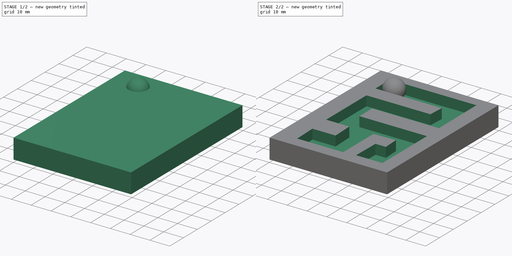
[diagram: build sequence overview — one tinted view per stage of 2, left to right]
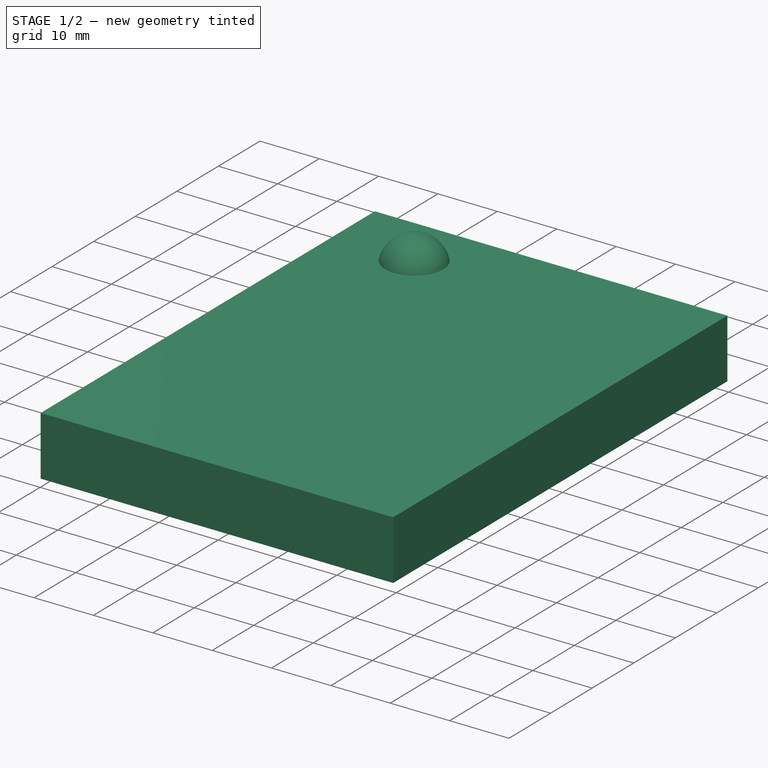
[diagram: stage 1 of 2 — iso view after this stage's code; geometry added in this stage tinted green]
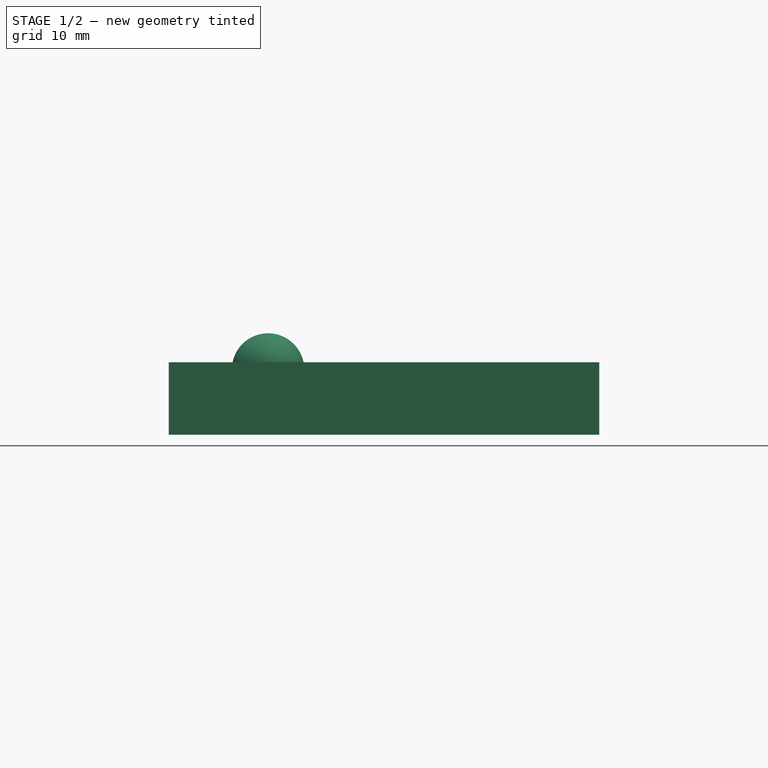
[diagram: stage 1 of 2 — front view after this stage's code; geometry added in this stage tinted green]
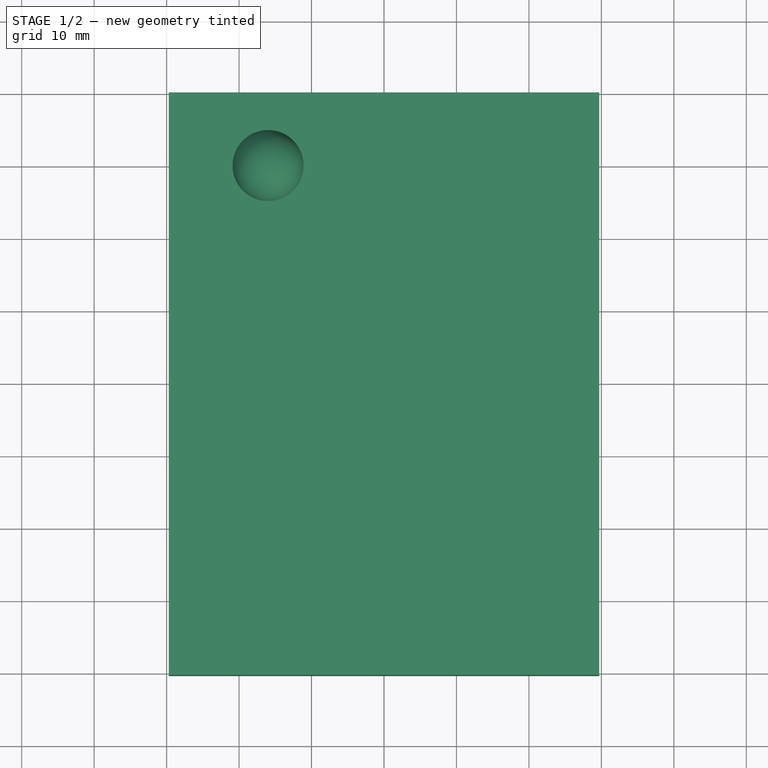
[diagram: stage 1 of 2 — top view after this stage's code; geometry added in this stage tinted green]
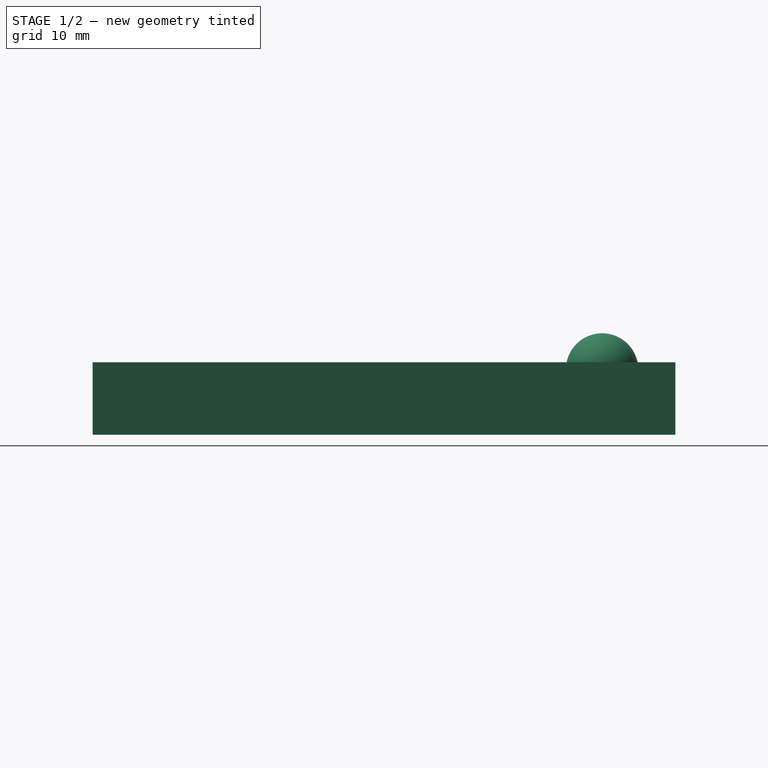
[diagram: stage 1 of 2 — right view after this stage's code; geometry added in this stage tinted green]
FCSTD DOCUMENT  (FreeCAD 0.21R33694 (Git))
Label: OJT1_T17R03_joc
License: All rights reserved
LicenseURL: http://en.wikipedia.org/wiki/All_rights_reserved
objects: Sketcher::SketchObject×3, PartDesign::Pocket×2, PartDesign::Pad×1, PartDesign::Body×1, Part::Sphere×1
note: 11 computed .brp shape members not serialized (recipe doc carries the construction recipe); baked Part::Feature solids carry a one-line shape summary decoded from their .brp

FEATURE [Sketcher::SketchObject] Sketch
  FullyConstrained = false
  MapMode = 5
  Support = -> [XY_Plane]
  sketch-geometry (4):
    g0: LineSegment StartX=-29.697 StartY=40.101 StartZ=0 EndX=-29.697 EndY=-40.303 EndZ=0
    g1: LineSegment StartX=-29.697 StartY=-40.303 StartZ=0 EndX=29.697 EndY=-40.303 EndZ=0
    g2: LineSegment StartX=29.697 StartY=-40.303 StartZ=0 EndX=29.697 EndY=40.101 EndZ=0
    g3: LineSegment StartX=29.697 StartY=40.101 StartZ=0 EndX=-29.697 EndY=40.101 EndZ=0
  constraints (8):
    c: Vertical(g0)
    c: Coincident(g0,g1)
    c: Horizontal(g1)
    c: Coincident(g1,g2)
    c: Vertical(g2)
    c: Coincident(g2,g3)
    c: Coincident(g3,g0)
    c: Horizontal(g3)
FEATURE [PartDesign::Pad] Pad
  Direction = (0,0,1)
  Length = 10
  Length2 = 10
  Profile = -> Sketch
  ReferenceAxis = -> Sketch [N_Axis]
  Type = 0
FEATURE [PartDesign::Body] Body
  Group = -> [Sketch,Pad,Sketch001,Pocket,Sketch002,Pocket001]
  Origin = -> Origin
  Tip = -> Pocket001
FEATURE [Part::Sphere] Sphere
  Angle1 = -90
  Angle2 = 90
  Angle3 = 360
  AttacherType = Attacher::AttachEngine3D
  Placement = pos=(-16,30,9) rot=(0,0,1;0rad)
  Radius = 5
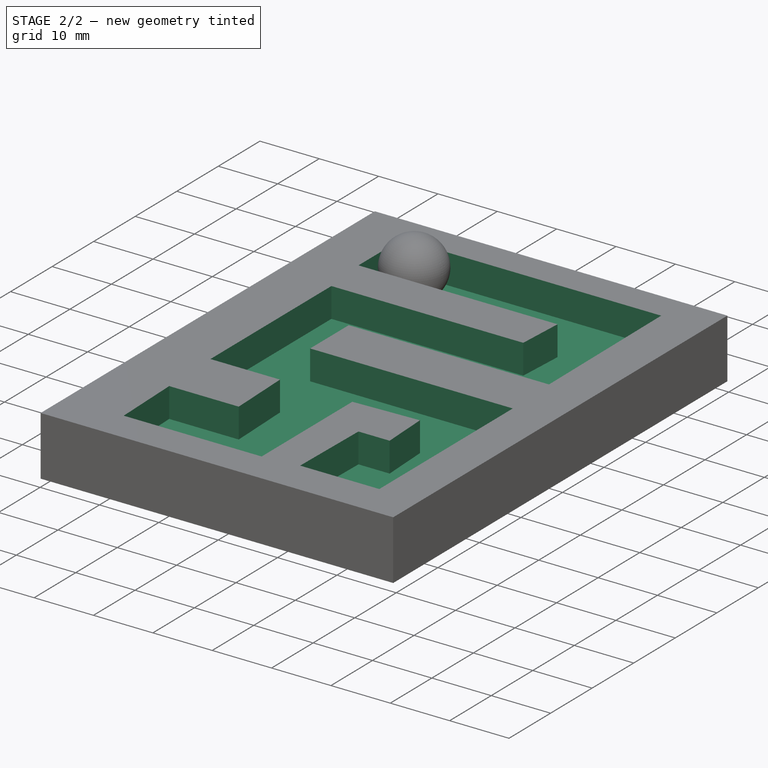
[diagram: stage 2 of 2 — iso view after this stage's code; geometry added in this stage tinted green]
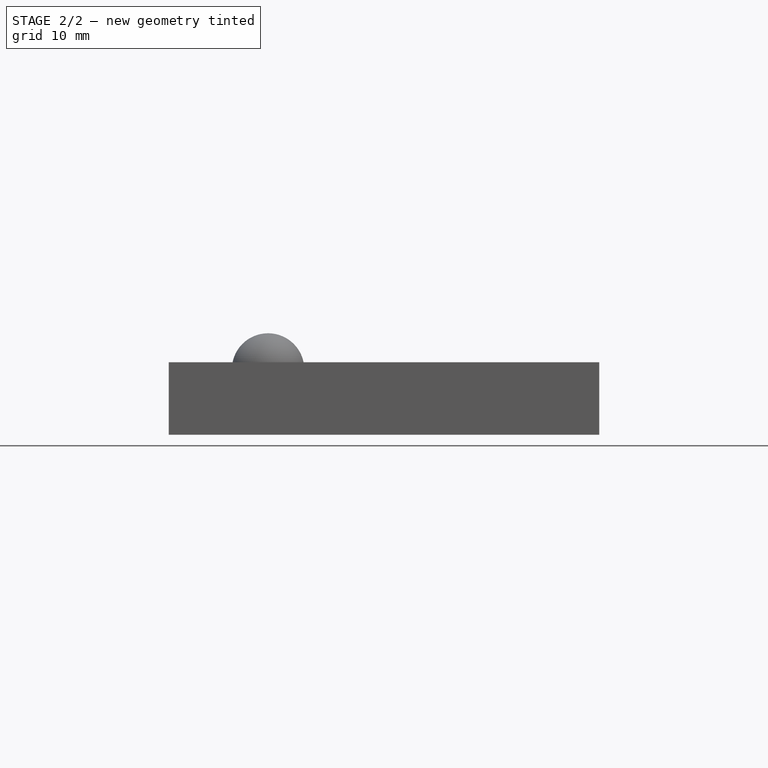
[diagram: stage 2 of 2 — front view after this stage's code; geometry added in this stage tinted green]
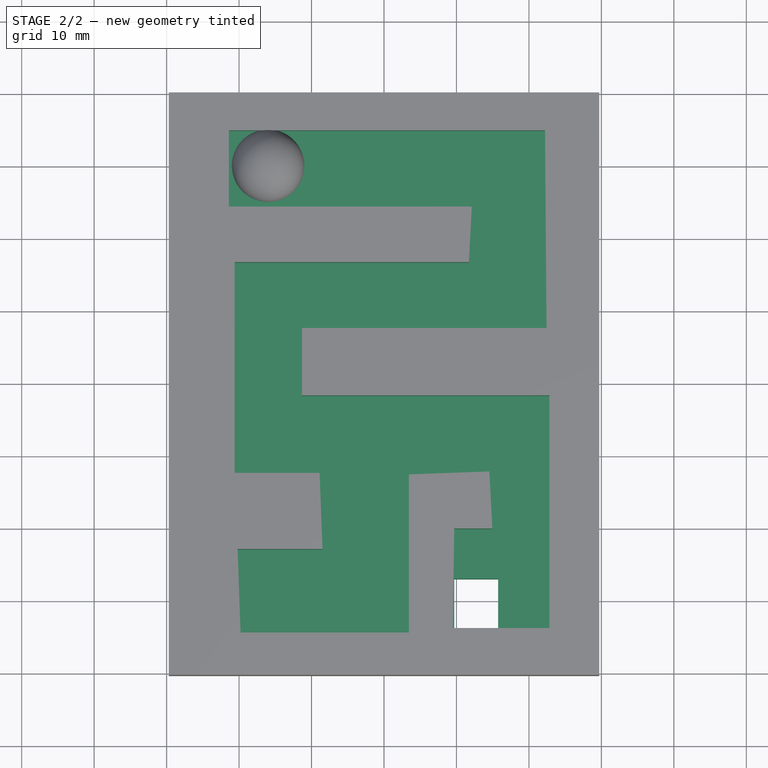
[diagram: stage 2 of 2 — top view after this stage's code; geometry added in this stage tinted green]
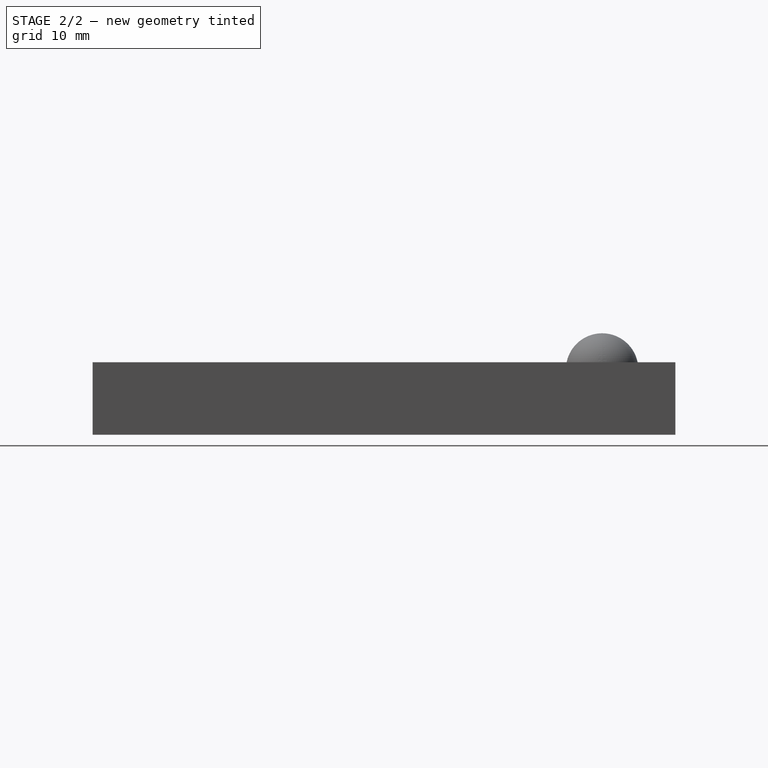
[diagram: stage 2 of 2 — right view after this stage's code; geometry added in this stage tinted green]
FEATURE [Sketcher::SketchObject] Sketch001
  FullyConstrained = false
  MapMode = 5
  Placement = pos=(0,0,10) rot=(0,0,1;0rad)
  Support = -> [Pad]
  sketch-geometry (22):
    g0: LineSegment StartX=22.2222 StartY=34.8485 StartZ=0 EndX=-21.4141 EndY=34.8485 EndZ=0
    g1: LineSegment StartX=-21.4141 StartY=34.8485 StartZ=0 EndX=-21.4141 EndY=24.3434 EndZ=0
    g2: LineSegment StartX=-21.4141 StartY=24.3434 StartZ=0 EndX=12.1212 EndY=24.3434 EndZ=0
    g3: LineSegment StartX=12.1212 StartY=24.3434 StartZ=0 EndX=11.7172 EndY=16.6667 EndZ=0
    g4: LineSegment StartX=11.7172 StartY=16.6667 StartZ=0 EndX=-20.6061 EndY=16.6667 EndZ=0
    g5: LineSegment StartX=-20.6061 StartY=16.6667 StartZ=0 EndX=-20.6061 EndY=-12.4242 EndZ=0
    g6: LineSegment StartX=-20.6061 StartY=-12.4242 StartZ=0 EndX=-8.88888 EndY=-12.4242 EndZ=0
    g7: LineSegment StartX=-8.88888 StartY=-12.4242 StartZ=0 EndX=-8.48484 EndY=-22.9293 EndZ=0
    g8: LineSegment StartX=-8.48484 StartY=-22.9293 StartZ=0 EndX=-20.202 EndY=-22.9293 EndZ=0
    g9: LineSegment StartX=-20.202 StartY=-22.9293 StartZ=0 EndX=-19.798 EndY=-34.4444 EndZ=0
    g10: LineSegment StartX=-19.798 StartY=-34.4444 StartZ=0 EndX=3.43435 EndY=-34.4444 EndZ=0
    g11: LineSegment StartX=3.43435 StartY=-34.4444 StartZ=0 EndX=3.43435 EndY=-12.6263 EndZ=0
    g12: LineSegment StartX=3.43435 StartY=-12.6263 StartZ=0 EndX=14.5455 EndY=-12.2222 EndZ=0
    g13: LineSegment StartX=14.5455 StartY=-12.2222 StartZ=0 EndX=14.9495 EndY=-20.101 EndZ=0
    g14: LineSegment StartX=14.9495 StartY=-20.101 StartZ=0 EndX=9.69698 EndY=-20.101 EndZ=0
    g15: LineSegment StartX=9.69698 StartY=-20.101 StartZ=0 EndX=9.49495 EndY=-33.8384 EndZ=0
    g16: LineSegment StartX=9.49495 StartY=-33.8384 StartZ=0 EndX=22.8283 EndY=-33.8384 EndZ=0
    g17: LineSegment StartX=22.8283 StartY=-33.8384 StartZ=0 EndX=22.8283 EndY=-1.71717 EndZ=0
    g18: LineSegment StartX=22.8283 StartY=-1.71717 StartZ=0 EndX=-11.3131 EndY=-1.71717 EndZ=0
    g19: LineSegment StartX=-11.3131 StartY=-1.71717 StartZ=0 EndX=-11.3131 EndY=7.57576 EndZ=0
    g20: LineSegment StartX=-11.3131 StartY=7.57576 StartZ=0 EndX=22.4242 EndY=7.57576 EndZ=0
    g21: LineSegment StartX=22.4242 StartY=7.57576 StartZ=0 EndX=22.2222 EndY=34.8485 EndZ=0
  constraints (37):
    c: Horizontal(g0)
    c: Coincident(g0,g1)
    c: Vertical(g1)
    c: Coincident(g1,g2)
    c: Horizontal(g2)
    c: Coincident(g2,g3)
    c: Coincident(g3,g4)
    c: Horizontal(g4)
    c: Coincident(g4,g5)
    c: Vertical(g5)
    c: Coincident(g5,g6)
    c: Horizontal(g6)
    c: Coincident(g6,g7)
    c: Coincident(g7,g8)
    c: Horizontal(g8)
    c: Coincident(g8,g9)
    c: Coincident(g9,g10)
    c: Horizontal(g10)
    c: Coincident(g10,g11)
    c: Vertical(g11)
    c: Coincident(g11,g12)
    c: Coincident(g12,g13)
    c: Coincident(g13,g14)
    c: Horizontal(g14)
    c: Coincident(g14,g15)
    c: Coincident(g15,g16)
    c: Horizontal(g16)
    c: Coincident(g16,g17)
    c: Vertical(g17)
    c: Coincident(g17,g18)
    c: Horizontal(g18)
    c: Coincident(g18,g19)
    c: Vertical(g19)
    c: Coincident(g19,g20)
    c: Horizontal(g20)
    c: Coincident(g20,g21)
    c: Coincident(g21,g0)
FEATURE [PartDesign::Pocket] Pocket
  BaseFeature = -> Pad
  Direction = (0,0,-1)
  Length = 5
  Length2 = 5
  Profile = -> Sketch001
  ReferenceAxis = -> Sketch001 [N_Axis]
  Type = 0
FEATURE [Sketcher::SketchObject] Sketch002
  FullyConstrained = false
  MapMode = 5
  Placement = pos=(0,0,5) rot=(0,0,1;0rad)
  Support = -> [Pocket]
  sketch-geometry (4):
    g0: LineSegment StartX=9.69698 StartY=-26.9697 StartZ=0 EndX=15.7576 EndY=-26.9697 EndZ=0
    g1: LineSegment StartX=15.7576 StartY=-26.9697 StartZ=0 EndX=15.7576 EndY=-35.0505 EndZ=0
    g2: LineSegment StartX=15.7576 StartY=-35.0505 StartZ=0 EndX=9.69698 EndY=-34.2424 EndZ=0
    g3: LineSegment StartX=9.69698 StartY=-34.2424 StartZ=0 EndX=9.69698 EndY=-26.9697 EndZ=0
  constraints (7):
    c: Horizontal(g0)
    c: Coincident(g0,g1)
    c: Vertical(g1)
    c: Coincident(g1,g2)
    c: Coincident(g2,g3)
    c: Coincident(g3,g0)
    c: Vertical(g3)
FEATURE [PartDesign::Pocket] Pocket001
  BaseFeature = -> Pocket
  Direction = (0,0,-1)
  Length = 5
  Length2 = 5
  Profile = -> Sketch002
  ReferenceAxis = -> Sketch002 [N_Axis]
  Type = 1
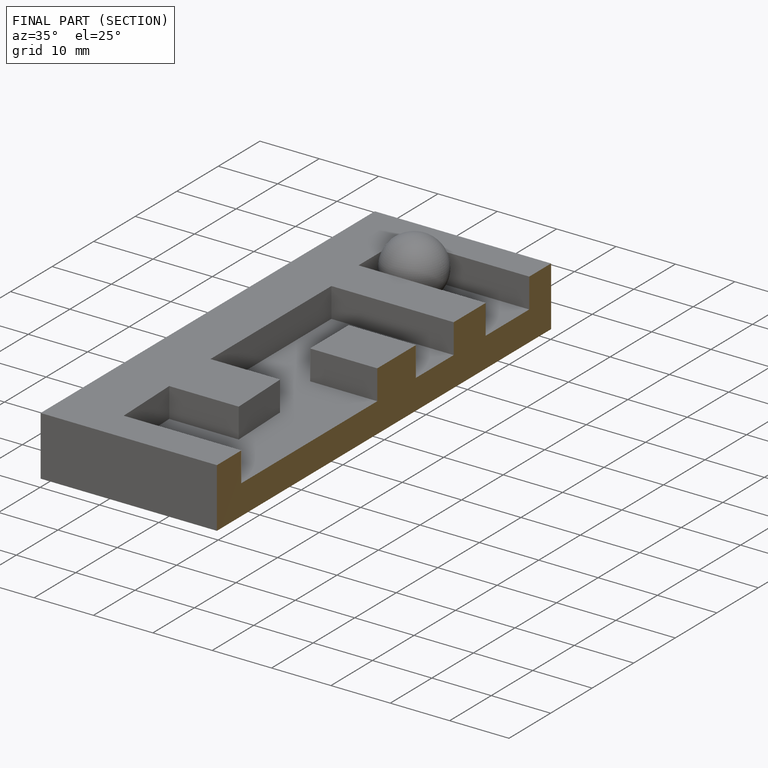
[diagram: finished part — half-section view (interior)]
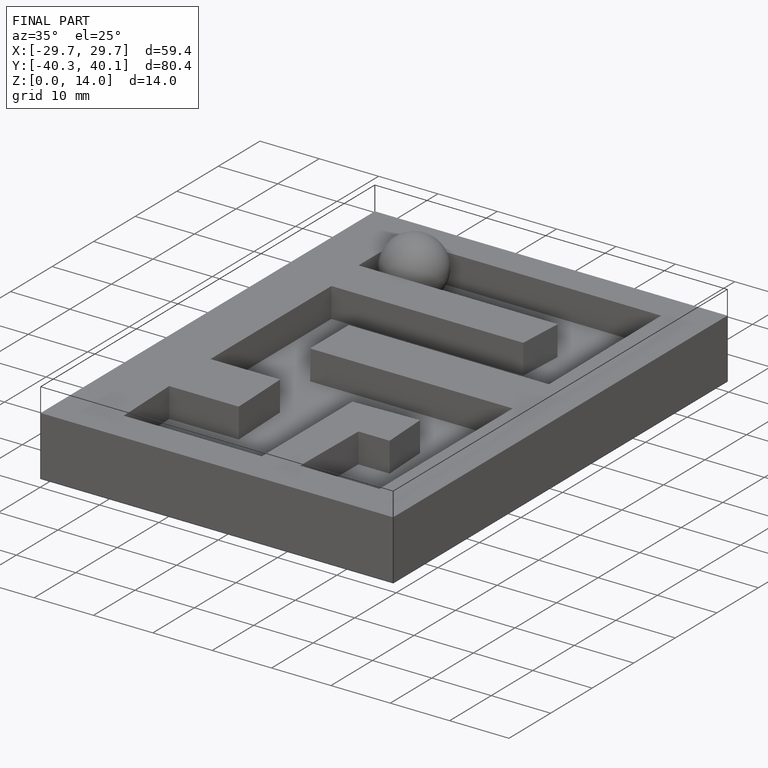
[diagram: finished part — iso view with bounding-box wireframe]
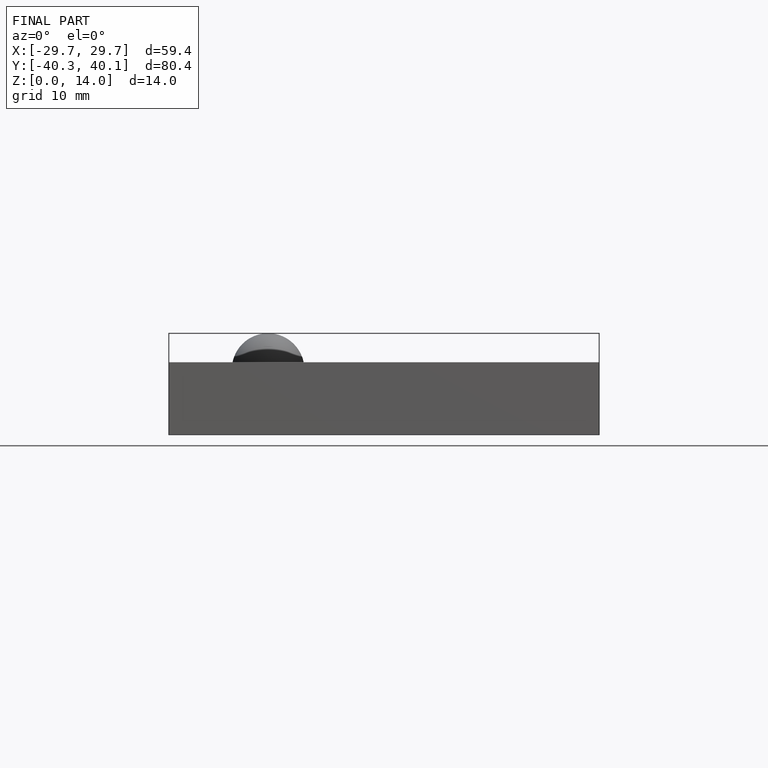
[diagram: finished part — front view with bounding-box wireframe]
